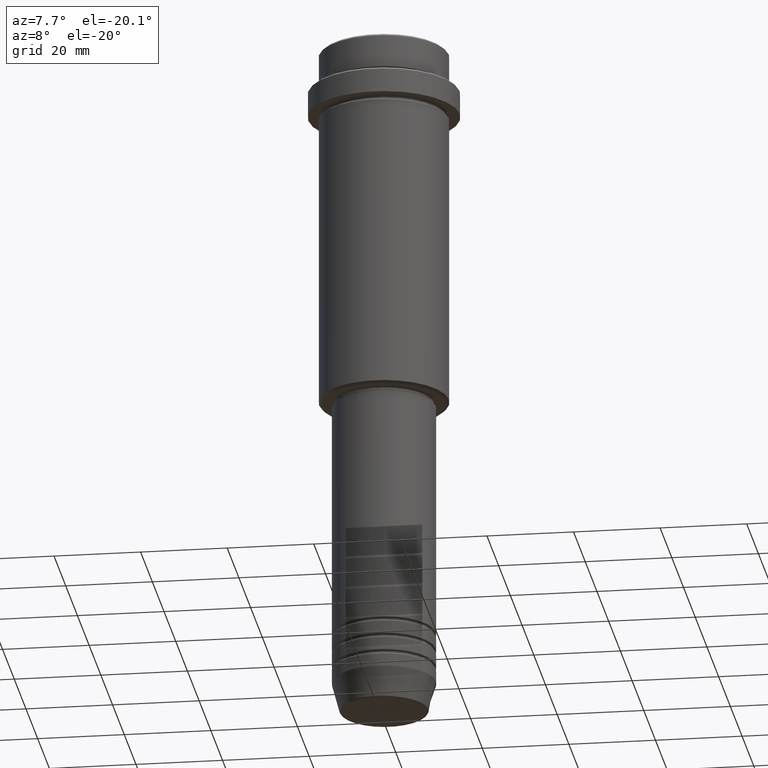
[diagram: clean part render]
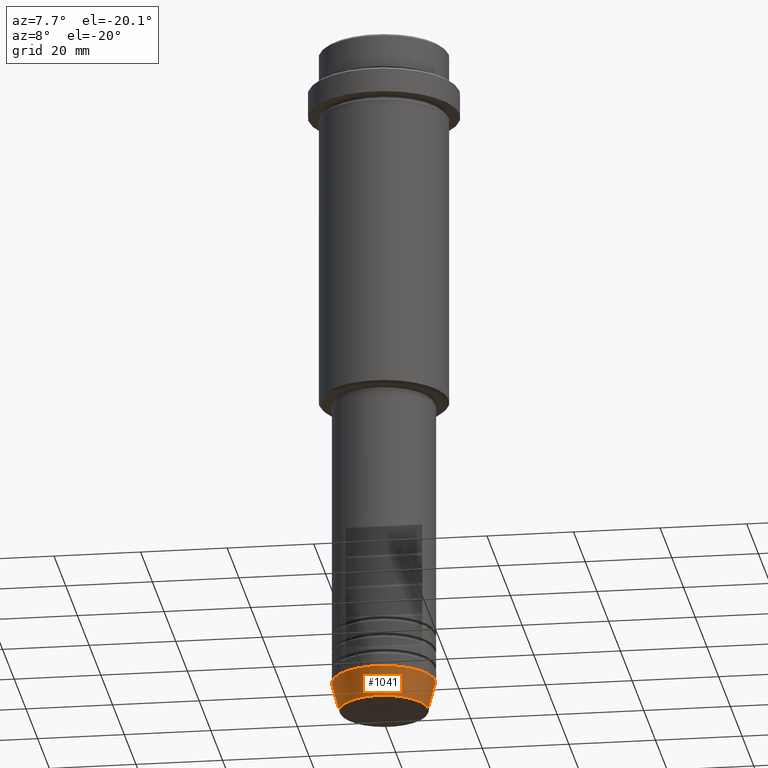
[diagram: same view with one face highlighted and labeled with its STEP entity id]
A machine part, auxiliary view. The second image highlights one B-rep face of the part: STEP entity #1041.
In plain terms, the highlighted conical surface has half-angle 15 deg.
Its self-contained STEP definition (entity closure, byte-faithful):
#28 = VERTEX_POINT ( 'NONE', #92 ) ;
#44 = ORIENTED_EDGE ( 'NONE', *, *, #127, .F. ) ;
#51 = DIRECTION ( 'NONE',  ( 1.000000000000000000, 0.000000000000000000, 0.000000000000000000 ) ) ;
#92 = CARTESIAN_POINT ( 'NONE',  ( 12.00000000000000000, 0.000000000000000000, -153.0000000000000000 ) ) ;
#127 = EDGE_CURVE ( 'NONE', #1235, #28, #507, .T. ) ;
#174 = EDGE_CURVE ( 'NONE', #1213, #28, #743, .T. ) ;
#198 = CARTESIAN_POINT ( 'NONE',  ( -12.00000000000000000, 1.469576158976823947E-15, -153.0000000000000000 ) ) ;
#213 = DIRECTION ( 'NONE',  ( -0.000000000000000000, -0.000000000000000000, 1.000000000000000000 ) ) ;
#254 = CONICAL_SURFACE ( 'NONE', #1269, 12.00000000000000000, 0.2617993877991500740 ) ;
#264 = CARTESIAN_POINT ( 'NONE',  ( 0.000000000000000000, 0.000000000000000000, -159.6294095225512422 ) ) ;
#345 = DIRECTION ( 'NONE',  ( 1.000000000000000000, 0.000000000000000000, 0.000000000000000000 ) ) ;
#507 = CIRCLE ( 'NONE', #1245, 12.00000000000000000 ) ;
#510 = CIRCLE ( 'NONE', #716, 10.22365507213719127 ) ;
#542 = CARTESIAN_POINT ( 'NONE',  ( 0.000000000000000000, 0.000000000000000000, -153.0000000000000000 ) ) ;
#554 = CARTESIAN_POINT ( 'NONE',  ( 10.22365507213719127, 0.000000000000000000, -159.6294095225512422 ) ) ;
#617 = ORIENTED_EDGE ( 'NONE', *, *, #766, .F. ) ;
#681 = CARTESIAN_POINT ( 'NONE',  ( -12.00000000000000000, 1.469576158976823947E-15, -153.0000000000000000 ) ) ;
#716 = AXIS2_PLACEMENT_3D ( 'NONE', #264, #1106, #345 ) ;
#743 = LINE ( 'NONE', #1317, #1387 ) ;
#763 = DIRECTION ( 'NONE',  ( 0.2588190451025213501, 0.000000000000000000, 0.9659258262890680902 ) ) ;
#766 = EDGE_CURVE ( 'NONE', #990, #1235, #969, .T. ) ;
#840 = DIRECTION ( 'NONE',  ( -0.2588190451025213501, 3.169619151431772337E-17, 0.9659258262890680902 ) ) ;
#847 = FACE_OUTER_BOUND ( 'NONE', #876, .T. ) ;
#876 = EDGE_LOOP ( 'NONE', ( #617, #982, #1330, #44 ) ) ;
#969 = LINE ( 'NONE', #198, #1372 ) ;
#982 = ORIENTED_EDGE ( 'NONE', *, *, #1225, .T. ) ;
#990 = VERTEX_POINT ( 'NONE', #1262 ) ;
#1041 = ADVANCED_FACE ( 'NONE', ( #847 ), #254, .T. ) ;
#1106 = DIRECTION ( 'NONE',  ( -0.000000000000000000, -0.000000000000000000, 1.000000000000000000 ) ) ;
#1159 = CARTESIAN_POINT ( 'NONE',  ( 0.000000000000000000, 0.000000000000000000, -153.0000000000000000 ) ) ;
#1213 = VERTEX_POINT ( 'NONE', #554 ) ;
#1225 = EDGE_CURVE ( 'NONE', #990, #1213, #510, .T. ) ;
#1235 = VERTEX_POINT ( 'NONE', #681 ) ;
#1245 = AXIS2_PLACEMENT_3D ( 'NONE', #1159, #1355, #51 ) ;
#1262 = CARTESIAN_POINT ( 'NONE',  ( -10.22365507213719127, 1.360806402472382744E-15, -159.6294095225512422 ) ) ;
#1269 = AXIS2_PLACEMENT_3D ( 'NONE', #542, #213, #1392 ) ;
#1317 = CARTESIAN_POINT ( 'NONE',  ( 12.00000000000000000, 0.000000000000000000, -153.0000000000000000 ) ) ;
#1330 = ORIENTED_EDGE ( 'NONE', *, *, #174, .T. ) ;
#1355 = DIRECTION ( 'NONE',  ( -0.000000000000000000, -0.000000000000000000, 1.000000000000000000 ) ) ;
#1372 = VECTOR ( 'NONE', #840, 1000.000000000000000 ) ;
#1387 = VECTOR ( 'NONE', #763, 1000.000000000000000 ) ;
#1392 = DIRECTION ( 'NONE',  ( 1.000000000000000000, 0.000000000000000000, 0.000000000000000000 ) ) ;